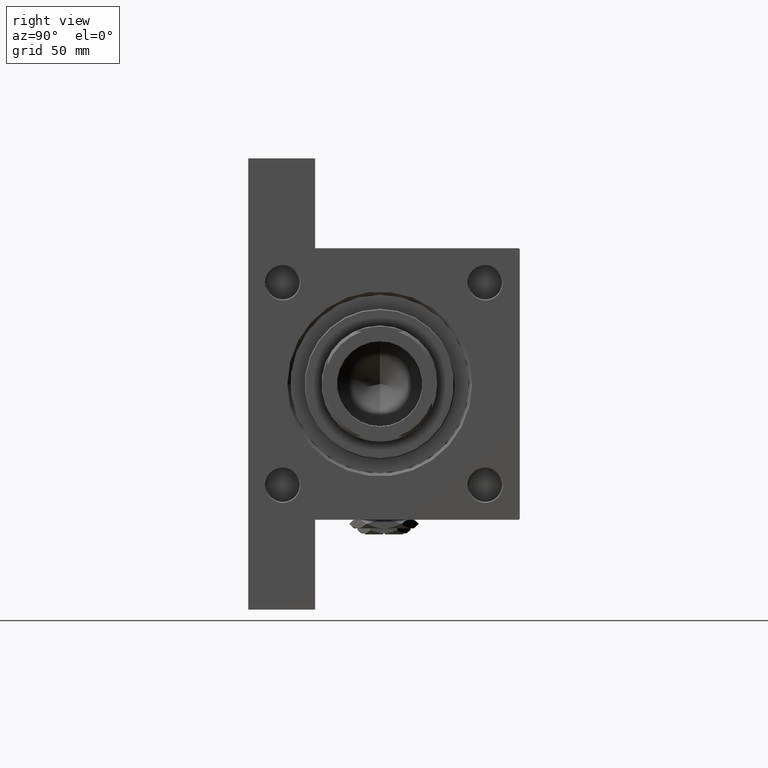
[diagram: clean part render]
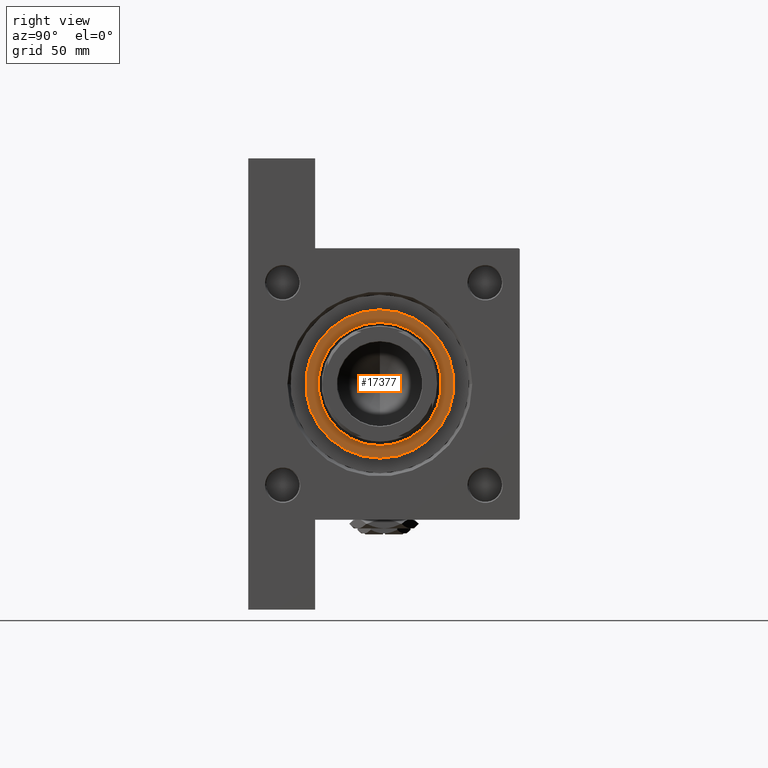
[diagram: same view with one face highlighted and labeled with its STEP entity id]
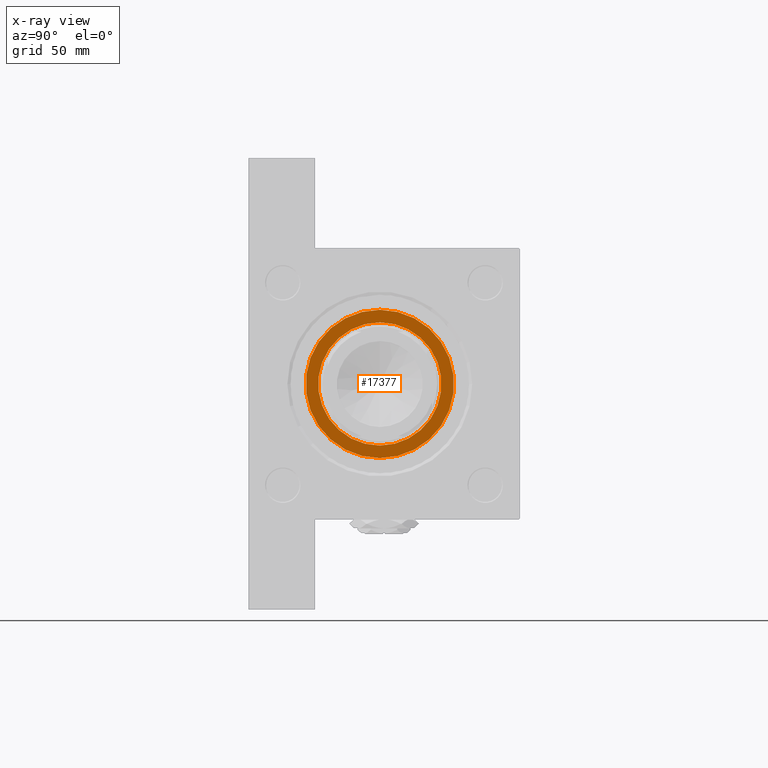
[diagram: x-ray of the same camera — body ghosted, the highlighted face saturated]
A machine part, right view. The second image highlights one B-rep face of the part: STEP entity #17377.
The next image is the same camera in x-ray: the body ghosted, the highlighted face saturated — about 0% of this face is hidden behind the body in this view.
In plain terms, the highlighted planar face has unit normal (1, 0, 0).
Its self-contained STEP definition (entity closure, byte-faithful):
#338 = VERTEX_POINT ( 'NONE', #38881 ) ;
#467 = EDGE_CURVE ( 'NONE', #42514, #338, #14216, .T. ) ;
#2029 = CARTESIAN_POINT ( 'NONE',  ( -29.50000000000000355, 3.612708057484692393E-15, 38.69999999999999574 ) ) ;
#3790 = DIRECTION ( 'NONE',  ( 0.000000000000000000, 0.000000000000000000, 1.000000000000000000 ) ) ;
#4001 = DIRECTION ( 'NONE',  ( 1.000000000000000000, 0.000000000000000000, 0.000000000000000000 ) ) ;
#4040 = DIRECTION ( 'NONE',  ( 1.000000000000000000, 0.000000000000000000, 0.000000000000000000 ) ) ;
#4756 = CARTESIAN_POINT ( 'NONE',  ( 35.49999999999999289, 4.378112306951787069E-15, 38.69999999999999574 ) ) ;
#4862 = DIRECTION ( 'NONE',  ( 1.000000000000000000, 0.000000000000000000, -0.000000000000000000 ) ) ;
#5114 = PLANE ( 'NONE',  #22891 ) ;
#7561 = CARTESIAN_POINT ( 'NONE',  ( 0.000000000000000000, 0.000000000000000000, 38.69999999999999574 ) ) ;
#8574 = DIRECTION ( 'NONE',  ( 1.000000000000000000, 0.000000000000000000, 0.000000000000000000 ) ) ;
#8717 = CIRCLE ( 'NONE', #34497, 29.50000000000000355 ) ;
#12843 = CARTESIAN_POINT ( 'NONE',  ( 0.000000000000000000, 0.000000000000000000, 38.69999999999999574 ) ) ;
#12984 = ORIENTED_EDGE ( 'NONE', *, *, #32818, .F. ) ;
#14216 = CIRCLE ( 'NONE', #44865, 35.49999999999999289 ) ;
#15214 = DIRECTION ( 'NONE',  ( 1.000000000000000000, 0.000000000000000000, 0.000000000000000000 ) ) ;
#17377 = ADVANCED_FACE ( 'NONE', ( #28813, #47801 ), #5114, .T. ) ;
#20319 = VERTEX_POINT ( 'NONE', #32767 ) ;
#22302 = CARTESIAN_POINT ( 'NONE',  ( 0.000000000000000000, 0.000000000000000000, 38.69999999999999574 ) ) ;
#22891 = AXIS2_PLACEMENT_3D ( 'NONE', #39467, #28580, #4862 ) ;
#23445 = DIRECTION ( 'NONE',  ( 0.000000000000000000, 0.000000000000000000, 1.000000000000000000 ) ) ;
#23691 = ORIENTED_EDGE ( 'NONE', *, *, #32437, .T. ) ;
#25535 = CIRCLE ( 'NONE', #38469, 35.49999999999999289 ) ;
#26206 = ORIENTED_EDGE ( 'NONE', *, *, #38491, .F. ) ;
#26332 = DIRECTION ( 'NONE',  ( 0.000000000000000000, 0.000000000000000000, 1.000000000000000000 ) ) ;
#27209 = ORIENTED_EDGE ( 'NONE', *, *, #467, .T. ) ;
#27292 = CIRCLE ( 'NONE', #49084, 29.50000000000000355 ) ;
#28580 = DIRECTION ( 'NONE',  ( 0.000000000000000000, 0.000000000000000000, 1.000000000000000000 ) ) ;
#28813 = FACE_BOUND ( 'NONE', #39549, .T. ) ;
#30808 = CARTESIAN_POINT ( 'NONE',  ( 0.000000000000000000, 0.000000000000000000, 38.69999999999999574 ) ) ;
#31451 = EDGE_LOOP ( 'NONE', ( #23691, #27209 ) ) ;
#32437 = EDGE_CURVE ( 'NONE', #338, #42514, #25535, .T. ) ;
#32767 = CARTESIAN_POINT ( 'NONE',  ( 29.50000000000000355, 0.000000000000000000, 38.69999999999999574 ) ) ;
#32818 = EDGE_CURVE ( 'NONE', #46831, #20319, #8717, .T. ) ;
#34497 = AXIS2_PLACEMENT_3D ( 'NONE', #30808, #3790, #4040 ) ;
#38469 = AXIS2_PLACEMENT_3D ( 'NONE', #22302, #26332, #15214 ) ;
#38491 = EDGE_CURVE ( 'NONE', #20319, #46831, #27292, .T. ) ;
#38881 = CARTESIAN_POINT ( 'NONE',  ( -35.49999999999999289, 0.000000000000000000, 38.69999999999999574 ) ) ;
#39467 = CARTESIAN_POINT ( 'NONE',  ( 0.000000000000000000, 0.000000000000000000, 38.69999999999999574 ) ) ;
#39549 = EDGE_LOOP ( 'NONE', ( #26206, #12984 ) ) ;
#39882 = DIRECTION ( 'NONE',  ( 0.000000000000000000, 0.000000000000000000, 1.000000000000000000 ) ) ;
#42514 = VERTEX_POINT ( 'NONE', #4756 ) ;
#44865 = AXIS2_PLACEMENT_3D ( 'NONE', #12843, #39882, #8574 ) ;
#46831 = VERTEX_POINT ( 'NONE', #2029 ) ;
#47801 = FACE_OUTER_BOUND ( 'NONE', #31451, .T. ) ;
#49084 = AXIS2_PLACEMENT_3D ( 'NONE', #7561, #23445, #4001 ) ;